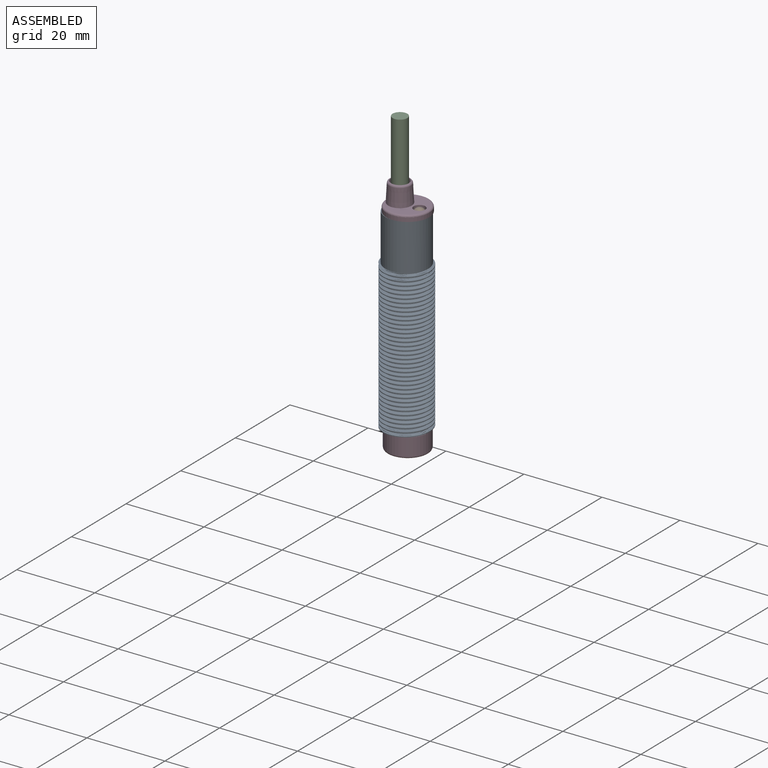
[diagram: assembled view]
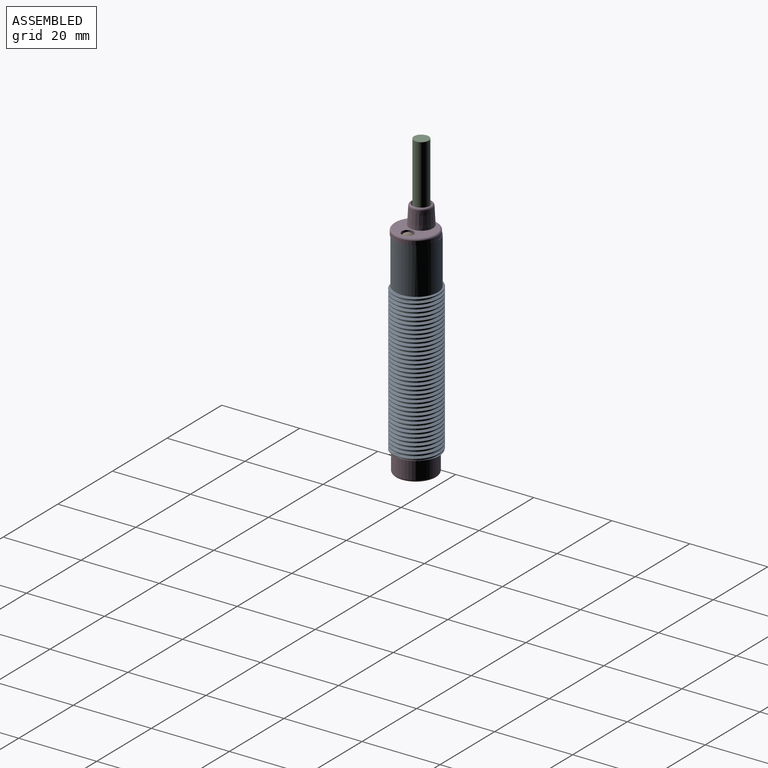
[diagram: assembled view, second angle]
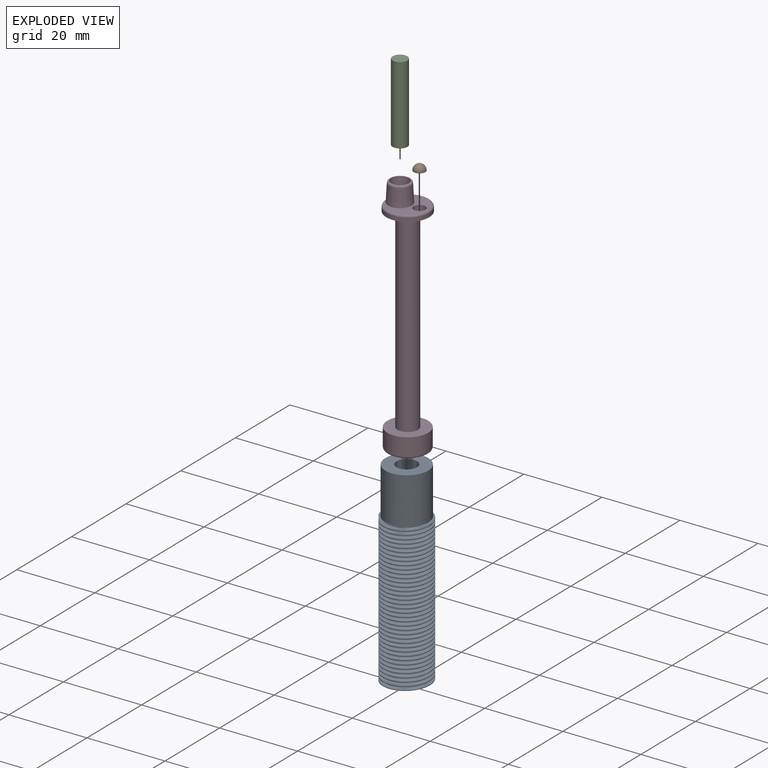
[diagram: exploded view]
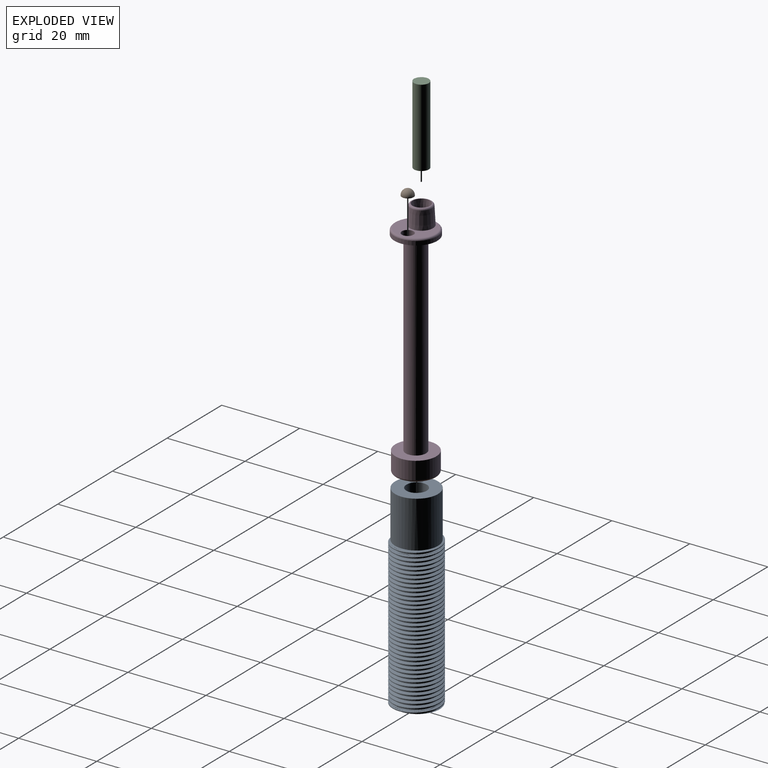
[diagram: exploded view, second angle]
ASSEMBLY  parts=4 mates=3
PART A: 10 faces, bbox 12.3x14.2x50.8 mm
  f0: plane 11.43x8.06mm, normal (0,0,1), area 7.1mm2, adj f2,f4,f6,f7
  f1: plane 11.67x11.64mm, normal (0,0,-1), area 78.4mm2, adj f2,f3,f4,f5,f6
  f2: cylinder r=5.98mm len=38mm, axis (0,0,1), area 307.3mm2, adj f0,f1,f4,f6
  f3: cylinder r=2.62mm len=50mm, axis (0,0,1), area 824.7mm2, adj f1,f8
  f4: bspline ~38.8x13.82mm, area 1017.8mm2, adj f0,f1,f2,f5,f9
  f5: cylinder r=5.29mm len=38mm, axis (0,0,-1), area 271.7mm2, adj f1,f4,f6,f9
  f6: bspline ~38.8x13.82mm, area 1017.9mm2, adj f0,f1,f2,f5,f9
  f7: cylinder r=5.5mm len=12mm, axis (0,0,1), area 414.7mm2, adj f0,f8,f9
  f8: plane 11x11mm, normal (0,0,1), area 73.4mm2, adj f3,f7
  f9: plane 10.32x3.58mm, normal (0,0,-1), area 2.1mm2, adj f4,f5,f6,f7
PART B: 2 faces, bbox 3x3x1.6 mm
  f0: plane 3x3mm, normal (0,0,-1), area 7.1mm2, adj f1
  f1: sphere r=1.5mm, area 15.1mm2, adj f0
PART C: 3 faces, bbox 3.8x3.8x20 mm
  f0: cylinder r=1.9mm len=20mm, axis (0,0,-1), area 238.8mm2, adj f1,f2
  f1: plane 3.8x3.8mm, normal (0,0,1), area 11.3mm2, adj f0
  f2: plane 3.8x3.8mm, normal (0,0,-1), area 11.3mm2, adj f0
PART D: 16 faces, bbox 11.9x11.9x61.5 mm
  f0: plane 11x11mm, normal (0,0,-1), area 68.4mm2, adj f1,f6,f8
  f1: cylinder r=5.5mm len=11mm, axis (0,0,-1), area 34.6mm2, adj f0,f14
  f2: plane 10x10mm, normal (0,0,1), area 43.2mm2, adj f8,f10,f14
  f3: plane 9.5x9.5mm, normal (0,0,-1), area 70.9mm2, adj f15
  f4: cylinder r=5.25mm len=10.5mm, axis (0,0,-1), area 148.4mm2, adj f5,f15
  f5: plane 10.5x10.5mm, normal (0,0,1), area 64.9mm2, adj f4,f6
  f6: cylinder r=2.62mm len=50mm, axis (0,0,-1), area 824.7mm2, adj f0,f5,f7
  f7: plane 2.62x1.13mm, normal (0,0,1), area 2.1mm2, adj f6,f8
  f8: cylinder r=1.5mm len=3mm, axis (0,0,1), area 14.1mm2, adj f0,f2,f7
  f9: cone r=2mm half-angle=3deg, axis (0,0,1), area 67mm2, adj f11,f12
  f10: cone r=3mm half-angle=3deg, axis (0,0,-1), area 82.1mm2, adj f2,f13
  f11: plane 4.53x4.53mm, normal (0,0,1), area 0mm2, adj f9,f13
  f12: plane 4x4mm, normal (0,0,1), area 12.6mm2, adj f9
  f13: torus R=2.26mm, axis (0,0,1), area 12.3mm2, adj f10,f11
  f14: torus R=5mm, axis (0,0,1), area 26.2mm2, adj f1,f2
  f15: torus R=4.75mm, axis (0,0,1), area 25mm2, adj f3,f4
PLACE A at identity fixed
PLACE B t=(0.25,0,0)mm
PLACE C t=(0.25,0,0)mm
PLACE D t=(0.25,0,0)mm
MATE fastened D.f7 <-> A.f2  axis (0,0,-1) through (0,0,35)mm
MATE fastened D.f9 <-> C.f0  axis (0,0,1) through (-1.75,0,36.5)mm
MATE fastened B.f0 <-> D.f8  axis (0,0,-1) through (3.25,0,35)mm
